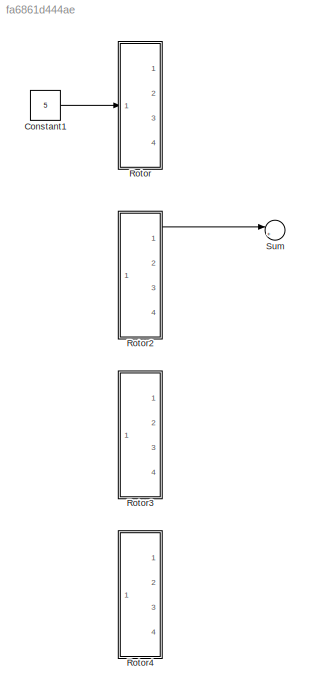
MODEL slx_fa6861d444ae
KIND model
CONFIG InitFcn = k_d = 1.18e-7\nB_a = 1.23e-6\nu_min = 1.25\nk_t = 3.7e-3\nk_v = 7.8e-3\nL_a = 1.9e-3\nI_G = 1.5e-5\nR_a = 260e-3\nm = 0.694\nl_a = 0.18\nI_x = 5.87e-3\nI_y = 5.87e-3\nI_z = 10.73e-3\n
BLOCK [Constant] Constant1
  Value = 5
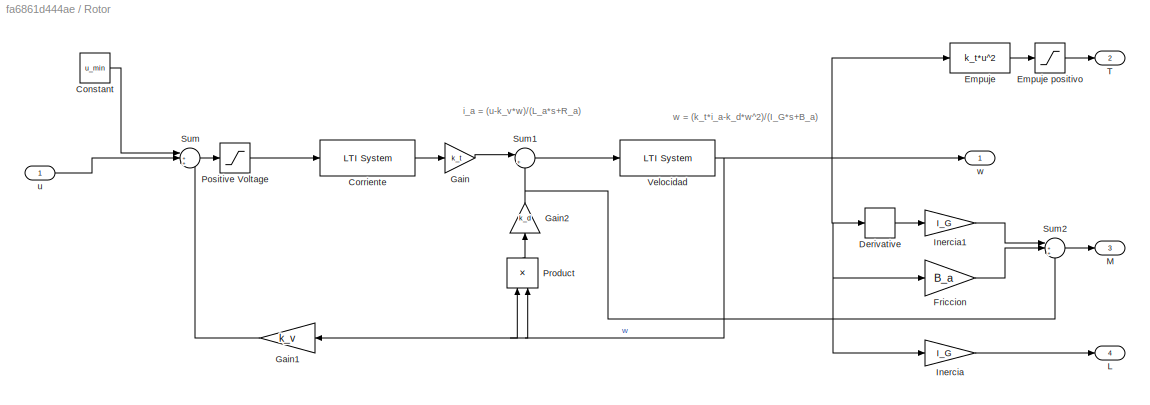
BLOCK [SubSystem] Rotor
  FunctionWithSeparateData = off
  MaskHideContents = off
  MinAlgLoopOccurrences = off
  Opaque = off
  Ports = [1, 4]
  PropExecContextOutsideSubsystem = off
  RTWSystemCode = Auto
  RequestExecContextInheritance = off
BLOCK [Constant] Rotor/Constant
  Value = u_min
BLOCK [Reference] Rotor/Corriente  REF=cstblocks/LTI System
  IC = []
  Ports = [1, 1]
  SourceBlock = cstblocks/LTI System
  SourceType = LTI Block
  sys = tf(1,[L_a R_a])
BLOCK [Derivative] Rotor/Derivative
BLOCK [Fcn] Rotor/Empuje
  Expr = k_t*u^2
BLOCK [Saturate] Rotor/Empuje positivo
  InputPortMap = u0
  LowerLimit = 0
  Ports = [1, 1]
  UpperLimit = inf
BLOCK [Gain] Rotor/Friccion
  Gain = B_a
  OutDataTypeStr = Inherit: Inherit via internal rule
  ParamDataTypeStr = Inherit: Inherit via internal rule
  SaturateOnIntegerOverflow = off
BLOCK [Gain] Rotor/Gain
  Gain = k_t
  OutDataTypeStr = Inherit: Inherit via internal rule
  ParamDataTypeStr = Inherit: Inherit via internal rule
  SaturateOnIntegerOverflow = off
BLOCK [Gain] Rotor/Gain1
  Gain = k_v
  OutDataTypeStr = Inherit: Inherit via internal rule
  ParamDataTypeStr = Inherit: Inherit via internal rule
  SaturateOnIntegerOverflow = off
BLOCK [Gain] Rotor/Gain2
  Gain = k_d
  OutDataTypeStr = Inherit: Inherit via internal rule
  ParamDataTypeStr = Inherit: Inherit via internal rule
  SaturateOnIntegerOverflow = off
BLOCK [Gain] Rotor/Inercia
  Gain = I_G
  OutDataTypeStr = Inherit: Inherit via internal rule
  ParamDataTypeStr = Inherit: Inherit via internal rule
  SaturateOnIntegerOverflow = off
BLOCK [Gain] Rotor/Inercia1
  Gain = I_G
  OutDataTypeStr = Inherit: Inherit via internal rule
  ParamDataTypeStr = Inherit: Inherit via internal rule
  SaturateOnIntegerOverflow = off
BLOCK [Outport] Rotor/L
  IconDisplay = Port number
  Port = 4
BLOCK [Outport] Rotor/M
  IconDisplay = Port number
  Port = 3
BLOCK [Saturate] Rotor/Positive Voltage
  InputPortMap = u0
  LowerLimit = 0
  Ports = [1, 1]
  UpperLimit = 30
BLOCK [Product] Rotor/Product
  InputSameDT = off
  OutDataTypeStr = Inherit: Inherit via internal rule
  Ports = [2, 1]
  RndMeth = Floor
  SaturateOnIntegerOverflow = off
BLOCK [Sum] Rotor/Sum
  IconShape = round
  InputSameDT = off
  Inputs = |++-
  OutDataTypeStr = Inherit: Inherit via internal rule
  Ports = [3, 1]
  SaturateOnIntegerOverflow = off
BLOCK [Sum] Rotor/Sum1
  IconShape = round
  InputSameDT = off
  Inputs = |+-
  OutDataTypeStr = Inherit: Inherit via internal rule
  Ports = [2, 1]
  SaturateOnIntegerOverflow = off
BLOCK [Sum] Rotor/Sum2
  IconShape = round
  InputSameDT = off
  Inputs = |+++
  OutDataTypeStr = Inherit: Inherit via internal rule
  Ports = [3, 1]
  SaturateOnIntegerOverflow = off
BLOCK [Outport] Rotor/T
  IconDisplay = Port number
  Port = 2
BLOCK [Reference] Rotor/Velocidad  REF=cstblocks/LTI System
  IC = []
  Ports = [1, 1]
  SourceBlock = cstblocks/LTI System
  SourceType = LTI Block
  sys = tf(1,[I_G B_a])
BLOCK [Inport] Rotor/u
  IconDisplay = Port number
BLOCK [Outport] Rotor/w
  IconDisplay = Port number
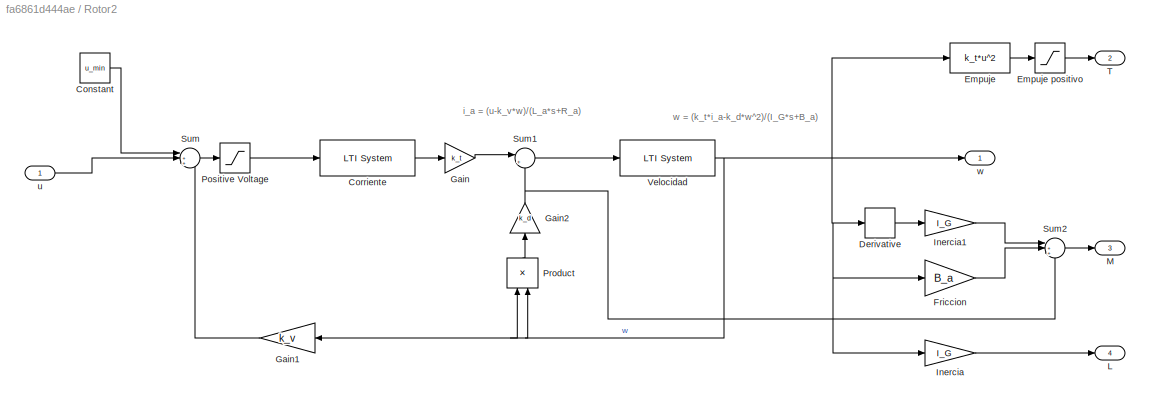
BLOCK [SubSystem] Rotor2
  FunctionWithSeparateData = off
  MaskHideContents = off
  MinAlgLoopOccurrences = off
  Opaque = off
  Ports = [1, 4]
  PropExecContextOutsideSubsystem = off
  RTWSystemCode = Auto
  RequestExecContextInheritance = off
BLOCK [Constant] Rotor2/Constant
  Value = u_min
BLOCK [Reference] Rotor2/Corriente  REF=cstblocks/LTI System
  IC = []
  Ports = [1, 1]
  SourceBlock = cstblocks/LTI System
  SourceType = LTI Block
  sys = tf(1,[L_a R_a])
BLOCK [Derivative] Rotor2/Derivative
BLOCK [Fcn] Rotor2/Empuje
  Expr = k_t*u^2
BLOCK [Saturate] Rotor2/Empuje positivo
  InputPortMap = u0
  LowerLimit = 0
  Ports = [1, 1]
  UpperLimit = inf
BLOCK [Gain] Rotor2/Friccion
  Gain = B_a
  OutDataTypeStr = Inherit: Inherit via internal rule
  ParamDataTypeStr = Inherit: Inherit via internal rule
  SaturateOnIntegerOverflow = off
BLOCK [Gain] Rotor2/Gain
  Gain = k_t
  OutDataTypeStr = Inherit: Inherit via internal rule
  ParamDataTypeStr = Inherit: Inherit via internal rule
  SaturateOnIntegerOverflow = off
BLOCK [Gain] Rotor2/Gain1
  Gain = k_v
  OutDataTypeStr = Inherit: Inherit via internal rule
  ParamDataTypeStr = Inherit: Inherit via internal rule
  SaturateOnIntegerOverflow = off
BLOCK [Gain] Rotor2/Gain2
  Gain = k_d
  OutDataTypeStr = Inherit: Inherit via internal rule
  ParamDataTypeStr = Inherit: Inherit via internal rule
  SaturateOnIntegerOverflow = off
BLOCK [Gain] Rotor2/Inercia
  Gain = I_G
  OutDataTypeStr = Inherit: Inherit via internal rule
  ParamDataTypeStr = Inherit: Inherit via internal rule
  SaturateOnIntegerOverflow = off
BLOCK [Gain] Rotor2/Inercia1
  Gain = I_G
  OutDataTypeStr = Inherit: Inherit via internal rule
  ParamDataTypeStr = Inherit: Inherit via internal rule
  SaturateOnIntegerOverflow = off
BLOCK [Outport] Rotor2/L
  IconDisplay = Port number
  Port = 4
BLOCK [Outport] Rotor2/M
  IconDisplay = Port number
  Port = 3
BLOCK [Saturate] Rotor2/Positive Voltage
  InputPortMap = u0
  LowerLimit = 0
  Ports = [1, 1]
  UpperLimit = 30
BLOCK [Product] Rotor2/Product
  InputSameDT = off
  OutDataTypeStr = Inherit: Inherit via internal rule
  Ports = [2, 1]
  RndMeth = Floor
  SaturateOnIntegerOverflow = off
BLOCK [Sum] Rotor2/Sum
  IconShape = round
  InputSameDT = off
  Inputs = |++-
  OutDataTypeStr = Inherit: Inherit via internal rule
  Ports = [3, 1]
  SaturateOnIntegerOverflow = off
BLOCK [Sum] Rotor2/Sum1
  IconShape = round
  InputSameDT = off
  Inputs = |+-
  OutDataTypeStr = Inherit: Inherit via internal rule
  Ports = [2, 1]
  SaturateOnIntegerOverflow = off
BLOCK [Sum] Rotor2/Sum2
  IconShape = round
  InputSameDT = off
  Inputs = |+++
  OutDataTypeStr = Inherit: Inherit via internal rule
  Ports = [3, 1]
  SaturateOnIntegerOverflow = off
BLOCK [Outport] Rotor2/T
  IconDisplay = Port number
  Port = 2
BLOCK [Reference] Rotor2/Velocidad  REF=cstblocks/LTI System
  IC = []
  Ports = [1, 1]
  SourceBlock = cstblocks/LTI System
  SourceType = LTI Block
  sys = tf(1,[I_G B_a])
BLOCK [Inport] Rotor2/u
  IconDisplay = Port number
BLOCK [Outport] Rotor2/w
  IconDisplay = Port number
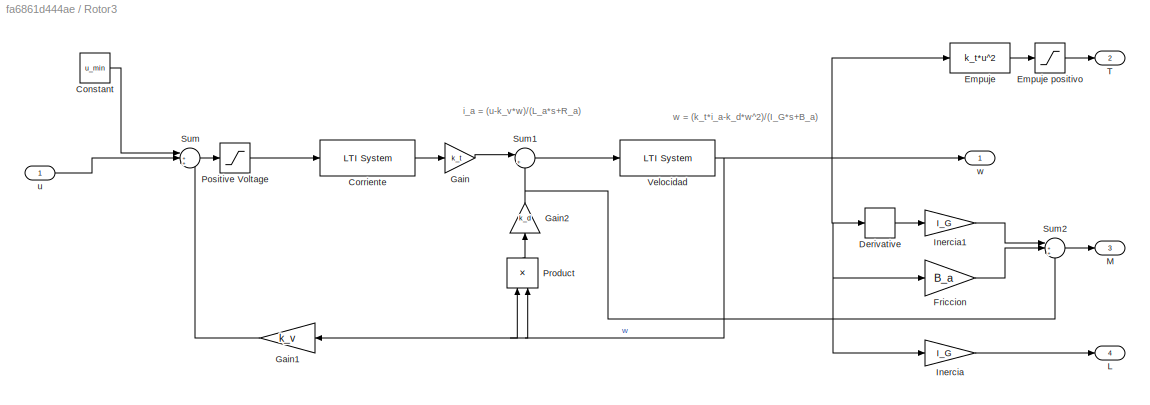
BLOCK [SubSystem] Rotor3
  FunctionWithSeparateData = off
  MaskHideContents = off
  MinAlgLoopOccurrences = off
  Opaque = off
  Ports = [1, 4]
  PropExecContextOutsideSubsystem = off
  RTWSystemCode = Auto
  RequestExecContextInheritance = off
BLOCK [Constant] Rotor3/Constant
  Value = u_min
BLOCK [Reference] Rotor3/Corriente  REF=cstblocks/LTI System
  IC = []
  Ports = [1, 1]
  SourceBlock = cstblocks/LTI System
  SourceType = LTI Block
  sys = tf(1,[L_a R_a])
BLOCK [Derivative] Rotor3/Derivative
BLOCK [Fcn] Rotor3/Empuje
  Expr = k_t*u^2
BLOCK [Saturate] Rotor3/Empuje positivo
  InputPortMap = u0
  LowerLimit = 0
  Ports = [1, 1]
  UpperLimit = inf
BLOCK [Gain] Rotor3/Friccion
  Gain = B_a
  OutDataTypeStr = Inherit: Inherit via internal rule
  ParamDataTypeStr = Inherit: Inherit via internal rule
  SaturateOnIntegerOverflow = off
BLOCK [Gain] Rotor3/Gain
  Gain = k_t
  OutDataTypeStr = Inherit: Inherit via internal rule
  ParamDataTypeStr = Inherit: Inherit via internal rule
  SaturateOnIntegerOverflow = off
BLOCK [Gain] Rotor3/Gain1
  Gain = k_v
  OutDataTypeStr = Inherit: Inherit via internal rule
  ParamDataTypeStr = Inherit: Inherit via internal rule
  SaturateOnIntegerOverflow = off
BLOCK [Gain] Rotor3/Gain2
  Gain = k_d
  OutDataTypeStr = Inherit: Inherit via internal rule
  ParamDataTypeStr = Inherit: Inherit via internal rule
  SaturateOnIntegerOverflow = off
BLOCK [Gain] Rotor3/Inercia
  Gain = I_G
  OutDataTypeStr = Inherit: Inherit via internal rule
  ParamDataTypeStr = Inherit: Inherit via internal rule
  SaturateOnIntegerOverflow = off
BLOCK [Gain] Rotor3/Inercia1
  Gain = I_G
  OutDataTypeStr = Inherit: Inherit via internal rule
  ParamDataTypeStr = Inherit: Inherit via internal rule
  SaturateOnIntegerOverflow = off
BLOCK [Outport] Rotor3/L
  IconDisplay = Port number
  Port = 4
BLOCK [Outport] Rotor3/M
  IconDisplay = Port number
  Port = 3
BLOCK [Saturate] Rotor3/Positive Voltage
  InputPortMap = u0
  LowerLimit = 0
  Ports = [1, 1]
  UpperLimit = 30
BLOCK [Product] Rotor3/Product
  InputSameDT = off
  OutDataTypeStr = Inherit: Inherit via internal rule
  Ports = [2, 1]
  RndMeth = Floor
  SaturateOnIntegerOverflow = off
BLOCK [Sum] Rotor3/Sum
  IconShape = round
  InputSameDT = off
  Inputs = |++-
  OutDataTypeStr = Inherit: Inherit via internal rule
  Ports = [3, 1]
  SaturateOnIntegerOverflow = off
BLOCK [Sum] Rotor3/Sum1
  IconShape = round
  InputSameDT = off
  Inputs = |+-
  OutDataTypeStr = Inherit: Inherit via internal rule
  Ports = [2, 1]
  SaturateOnIntegerOverflow = off
BLOCK [Sum] Rotor3/Sum2
  IconShape = round
  InputSameDT = off
  Inputs = |+++
  OutDataTypeStr = Inherit: Inherit via internal rule
  Ports = [3, 1]
  SaturateOnIntegerOverflow = off
BLOCK [Outport] Rotor3/T
  IconDisplay = Port number
  Port = 2
BLOCK [Reference] Rotor3/Velocidad  REF=cstblocks/LTI System
  IC = []
  Ports = [1, 1]
  SourceBlock = cstblocks/LTI System
  SourceType = LTI Block
  sys = tf(1,[I_G B_a])
BLOCK [Inport] Rotor3/u
  IconDisplay = Port number
BLOCK [Outport] Rotor3/w
  IconDisplay = Port number
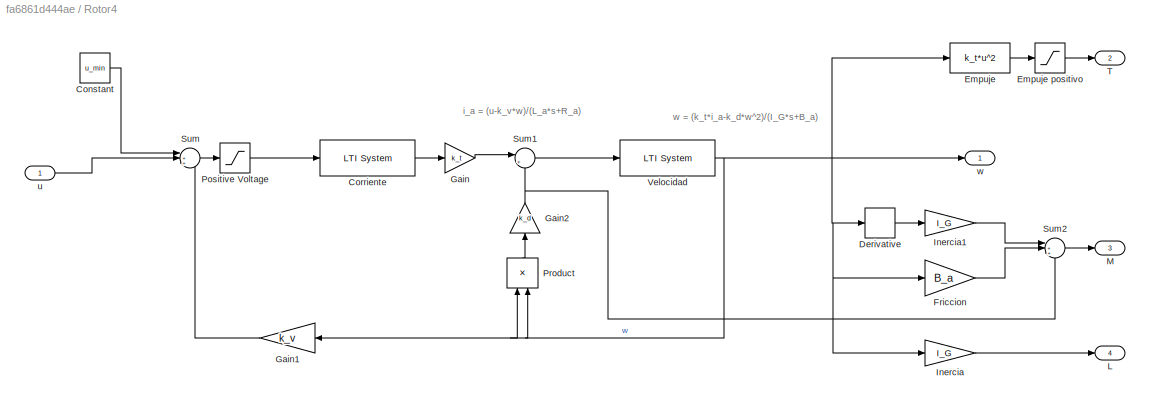
BLOCK [SubSystem] Rotor4
  FunctionWithSeparateData = off
  MaskHideContents = off
  MinAlgLoopOccurrences = off
  Opaque = off
  Ports = [1, 4]
  PropExecContextOutsideSubsystem = off
  RTWSystemCode = Auto
  RequestExecContextInheritance = off
BLOCK [Constant] Rotor4/Constant
  Value = u_min
BLOCK [Reference] Rotor4/Corriente  REF=cstblocks/LTI System
  IC = []
  Ports = [1, 1]
  SourceBlock = cstblocks/LTI System
  SourceType = LTI Block
  sys = tf(1,[L_a R_a])
BLOCK [Derivative] Rotor4/Derivative
BLOCK [Fcn] Rotor4/Empuje
  Expr = k_t*u^2
BLOCK [Saturate] Rotor4/Empuje positivo
  InputPortMap = u0
  LowerLimit = 0
  Ports = [1, 1]
  UpperLimit = inf
BLOCK [Gain] Rotor4/Friccion
  Gain = B_a
  OutDataTypeStr = Inherit: Inherit via internal rule
  ParamDataTypeStr = Inherit: Inherit via internal rule
  SaturateOnIntegerOverflow = off
BLOCK [Gain] Rotor4/Gain
  Gain = k_t
  OutDataTypeStr = Inherit: Inherit via internal rule
  ParamDataTypeStr = Inherit: Inherit via internal rule
  SaturateOnIntegerOverflow = off
BLOCK [Gain] Rotor4/Gain1
  Gain = k_v
  OutDataTypeStr = Inherit: Inherit via internal rule
  ParamDataTypeStr = Inherit: Inherit via internal rule
  SaturateOnIntegerOverflow = off
BLOCK [Gain] Rotor4/Gain2
  Gain = k_d
  OutDataTypeStr = Inherit: Inherit via internal rule
  ParamDataTypeStr = Inherit: Inherit via internal rule
  SaturateOnIntegerOverflow = off
BLOCK [Gain] Rotor4/Inercia
  Gain = I_G
  OutDataTypeStr = Inherit: Inherit via internal rule
  ParamDataTypeStr = Inherit: Inherit via internal rule
  SaturateOnIntegerOverflow = off
BLOCK [Gain] Rotor4/Inercia1
  Gain = I_G
  OutDataTypeStr = Inherit: Inherit via internal rule
  ParamDataTypeStr = Inherit: Inherit via internal rule
  SaturateOnIntegerOverflow = off
BLOCK [Outport] Rotor4/L
  IconDisplay = Port number
  Port = 4
BLOCK [Outport] Rotor4/M
  IconDisplay = Port number
  Port = 3
BLOCK [Saturate] Rotor4/Positive Voltage
  InputPortMap = u0
  LowerLimit = 0
  Ports = [1, 1]
  UpperLimit = 30
BLOCK [Product] Rotor4/Product
  InputSameDT = off
  OutDataTypeStr = Inherit: Inherit via internal rule
  Ports = [2, 1]
  RndMeth = Floor
  SaturateOnIntegerOverflow = off
BLOCK [Sum] Rotor4/Sum
  IconShape = round
  InputSameDT = off
  Inputs = |++-
  OutDataTypeStr = Inherit: Inherit via internal rule
  Ports = [3, 1]
  SaturateOnIntegerOverflow = off
BLOCK [Sum] Rotor4/Sum1
  IconShape = round
  InputSameDT = off
  Inputs = |+-
  OutDataTypeStr = Inherit: Inherit via internal rule
  Ports = [2, 1]
  SaturateOnIntegerOverflow = off
BLOCK [Sum] Rotor4/Sum2
  IconShape = round
  InputSameDT = off
  Inputs = |+++
  OutDataTypeStr = Inherit: Inherit via internal rule
  Ports = [3, 1]
  SaturateOnIntegerOverflow = off
BLOCK [Outport] Rotor4/T
  IconDisplay = Port number
  Port = 2
BLOCK [Reference] Rotor4/Velocidad  REF=cstblocks/LTI System
  IC = []
  Ports = [1, 1]
  SourceBlock = cstblocks/LTI System
  SourceType = LTI Block
  sys = tf(1,[I_G B_a])
BLOCK [Inport] Rotor4/u
  IconDisplay = Port number
BLOCK [Outport] Rotor4/w
  IconDisplay = Port number
BLOCK [Sum] Sum
  IconShape = round
  InputSameDT = off
  Inputs = |++
  OutDataTypeStr = Inherit: Inherit via internal rule
  Ports = [2, 1]
  SaturateOnIntegerOverflow = off
ANNOTATION Rotor: i_a = (u-k_v*w)/(L_a*s+R_a)
ANNOTATION Rotor: w = (k_t*i_a-k_d*w^2)/(I_G*s+B_a)
ANNOTATION Rotor2: i_a = (u-k_v*w)/(L_a*s+R_a)
ANNOTATION Rotor2: w = (k_t*i_a-k_d*w^2)/(I_G*s+B_a)
ANNOTATION Rotor3: i_a = (u-k_v*w)/(L_a*s+R_a)
ANNOTATION Rotor3: w = (k_t*i_a-k_d*w^2)/(I_G*s+B_a)
ANNOTATION Rotor4: i_a = (u-k_v*w)/(L_a*s+R_a)
ANNOTATION Rotor4: w = (k_t*i_a-k_d*w^2)/(I_G*s+B_a)
LINE Constant1:1 -> Rotor:1
LINE Rotor/Constant:1 -> Rotor/Sum:1
LINE Rotor/Corriente:1 -> Rotor/Gain:1
LINE Rotor/Derivative:1 -> Rotor/Inercia1:1
LINE Rotor/Empuje positivo:1 -> Rotor/T:1
LINE Rotor/Empuje:1 -> Rotor/Empuje positivo:1
LINE Rotor/Friccion:1 -> Rotor/Sum2:2
LINE Rotor/Gain1:1 -> Rotor/Sum:3
NET Rotor/Gain2:1 -> Rotor/Sum1:2, Rotor/Sum2:3
LINE Rotor/Gain:1 -> Rotor/Sum1:1
LINE Rotor/Inercia1:1 -> Rotor/Sum2:1
LINE Rotor/Inercia:1 -> Rotor/L:1
LINE Rotor/Positive Voltage:1 -> Rotor/Corriente:1
LINE Rotor/Product:1 -> Rotor/Gain2:1
LINE Rotor/Sum1:1 -> Rotor/Velocidad:1
LINE Rotor/Sum2:1 -> Rotor/M:1
LINE Rotor/Sum:1 -> Rotor/Positive Voltage:1
NET Rotor/Velocidad:1 -> Rotor/Derivative:1, Rotor/Empuje:1, Rotor/Friccion:1, Rotor/Gain1:1, Rotor/Inercia:1, Rotor/Product:1, Rotor/Product:2, Rotor/w:1
LINE Rotor/u:1 -> Rotor/Sum:2
LINE Rotor2/Constant:1 -> Rotor2/Sum:1
LINE Rotor2/Corriente:1 -> Rotor2/Gain:1
LINE Rotor2/Derivative:1 -> Rotor2/Inercia1:1
LINE Rotor2/Empuje positivo:1 -> Rotor2/T:1
LINE Rotor2/Empuje:1 -> Rotor2/Empuje positivo:1
LINE Rotor2/Friccion:1 -> Rotor2/Sum2:2
LINE Rotor2/Gain1:1 -> Rotor2/Sum:3
NET Rotor2/Gain2:1 -> Rotor2/Sum1:2, Rotor2/Sum2:3
LINE Rotor2/Gain:1 -> Rotor2/Sum1:1
LINE Rotor2/Inercia1:1 -> Rotor2/Sum2:1
LINE Rotor2/Inercia:1 -> Rotor2/L:1
LINE Rotor2/Positive Voltage:1 -> Rotor2/Corriente:1
LINE Rotor2/Product:1 -> Rotor2/Gain2:1
LINE Rotor2/Sum1:1 -> Rotor2/Velocidad:1
LINE Rotor2/Sum2:1 -> Rotor2/M:1
LINE Rotor2/Sum:1 -> Rotor2/Positive Voltage:1
NET Rotor2/Velocidad:1 -> Rotor2/Derivative:1, Rotor2/Empuje:1, Rotor2/Friccion:1, Rotor2/Gain1:1, Rotor2/Inercia:1, Rotor2/Product:1, Rotor2/Product:2, Rotor2/w:1
LINE Rotor2/u:1 -> Rotor2/Sum:2
LINE Rotor2:1 -> Sum:1
LINE Rotor3/Constant:1 -> Rotor3/Sum:1
LINE Rotor3/Corriente:1 -> Rotor3/Gain:1
LINE Rotor3/Derivative:1 -> Rotor3/Inercia1:1
LINE Rotor3/Empuje positivo:1 -> Rotor3/T:1
LINE Rotor3/Empuje:1 -> Rotor3/Empuje positivo:1
LINE Rotor3/Friccion:1 -> Rotor3/Sum2:2
LINE Rotor3/Gain1:1 -> Rotor3/Sum:3
NET Rotor3/Gain2:1 -> Rotor3/Sum1:2, Rotor3/Sum2:3
LINE Rotor3/Gain:1 -> Rotor3/Sum1:1
LINE Rotor3/Inercia1:1 -> Rotor3/Sum2:1
LINE Rotor3/Inercia:1 -> Rotor3/L:1
LINE Rotor3/Positive Voltage:1 -> Rotor3/Corriente:1
LINE Rotor3/Product:1 -> Rotor3/Gain2:1
LINE Rotor3/Sum1:1 -> Rotor3/Velocidad:1
LINE Rotor3/Sum2:1 -> Rotor3/M:1
LINE Rotor3/Sum:1 -> Rotor3/Positive Voltage:1
NET Rotor3/Velocidad:1 -> Rotor3/Derivative:1, Rotor3/Empuje:1, Rotor3/Friccion:1, Rotor3/Gain1:1, Rotor3/Inercia:1, Rotor3/Product:1, Rotor3/Product:2, Rotor3/w:1
LINE Rotor3/u:1 -> Rotor3/Sum:2
LINE Rotor4/Constant:1 -> Rotor4/Sum:1
LINE Rotor4/Corriente:1 -> Rotor4/Gain:1
LINE Rotor4/Derivative:1 -> Rotor4/Inercia1:1
LINE Rotor4/Empuje positivo:1 -> Rotor4/T:1
LINE Rotor4/Empuje:1 -> Rotor4/Empuje positivo:1
LINE Rotor4/Friccion:1 -> Rotor4/Sum2:2
LINE Rotor4/Gain1:1 -> Rotor4/Sum:3
NET Rotor4/Gain2:1 -> Rotor4/Sum1:2, Rotor4/Sum2:3
LINE Rotor4/Gain:1 -> Rotor4/Sum1:1
LINE Rotor4/Inercia1:1 -> Rotor4/Sum2:1
LINE Rotor4/Inercia:1 -> Rotor4/L:1
LINE Rotor4/Positive Voltage:1 -> Rotor4/Corriente:1
LINE Rotor4/Product:1 -> Rotor4/Gain2:1
LINE Rotor4/Sum1:1 -> Rotor4/Velocidad:1
LINE Rotor4/Sum2:1 -> Rotor4/M:1
LINE Rotor4/Sum:1 -> Rotor4/Positive Voltage:1
NET Rotor4/Velocidad:1 -> Rotor4/Derivative:1, Rotor4/Empuje:1, Rotor4/Friccion:1, Rotor4/Gain1:1, Rotor4/Inercia:1, Rotor4/Product:1, Rotor4/Product:2, Rotor4/w:1
LINE Rotor4/u:1 -> Rotor4/Sum:2
note: NET lines group one-source signal fan-out (src -> all destinations, sorted); 1:1 wires keep LINE
